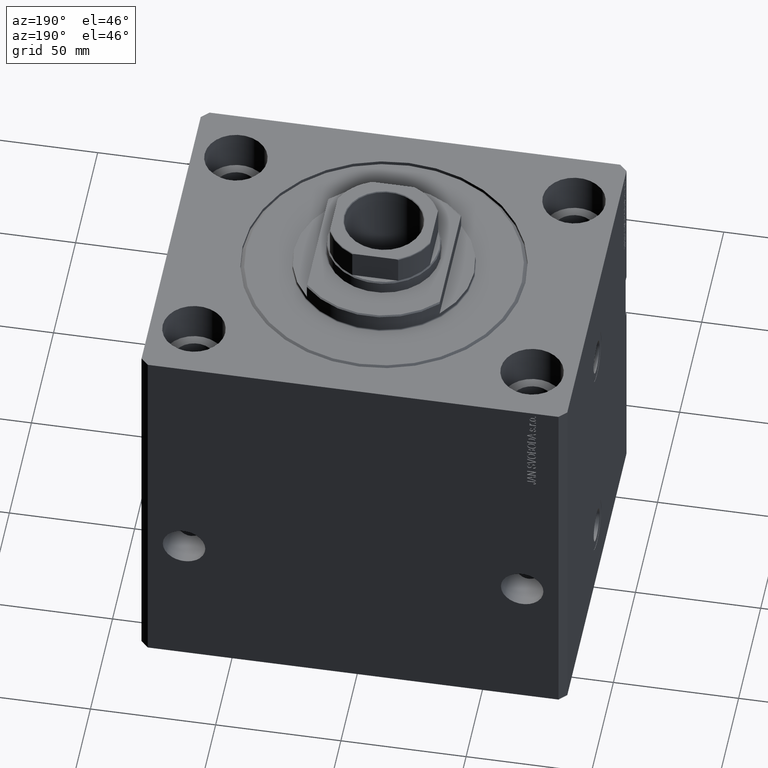
[diagram: clean part render]
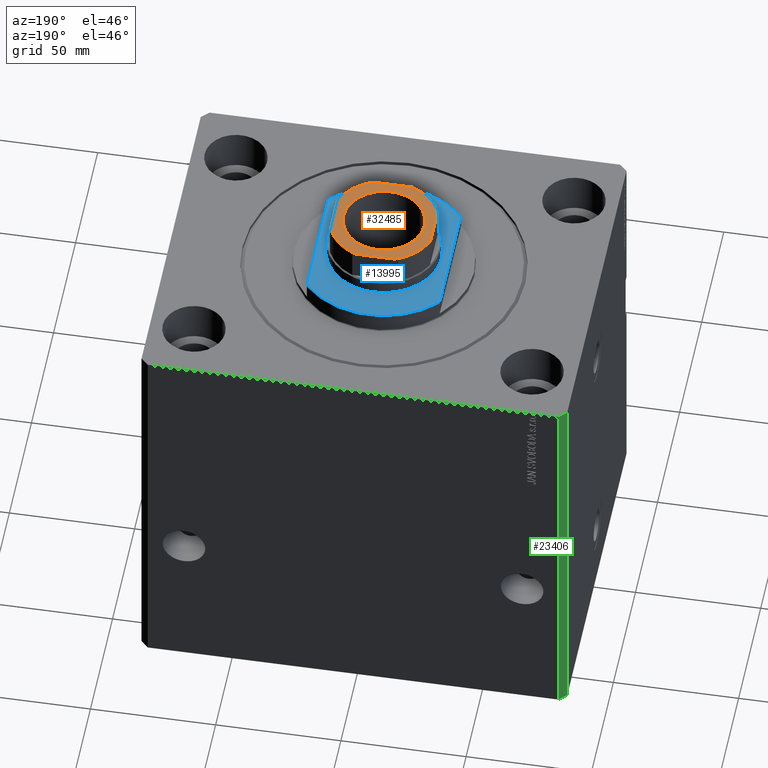
[diagram: same view with three faces highlighted in distinct colors, each labeled with its STEP entity id]
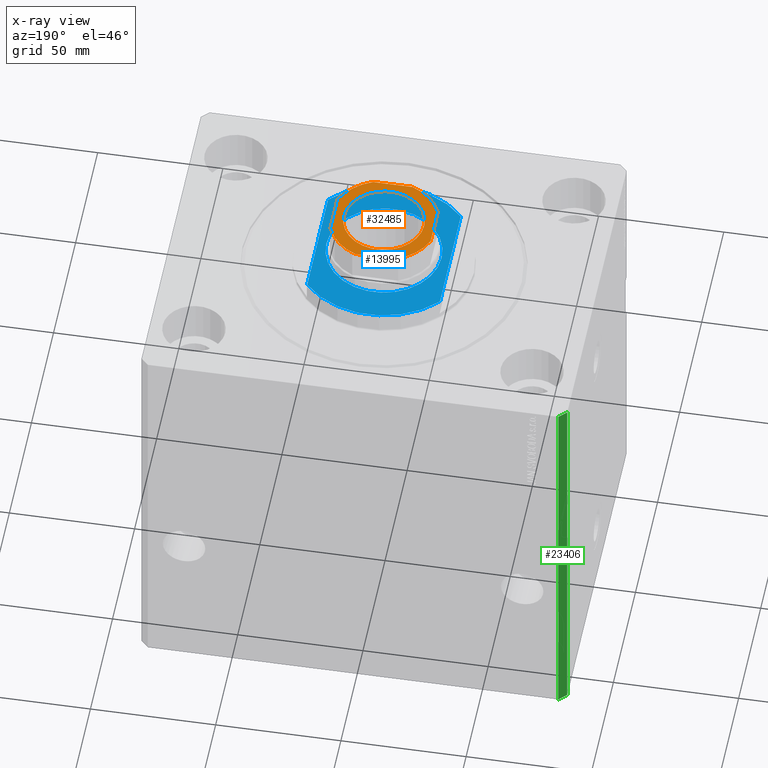
[diagram: x-ray of the same camera — body ghosted, the three highlighted faces saturated]
A machine part, auxiliary view with three faces highlighted in distinct colors.
The next image is the same camera in x-ray (body ghosted, the three faces saturated) — at least one of them is partly hidden behind the body in this view.
Their STEP definitions:

[orange] entity #32485 — the highlighted planar face has unit normal (0, 0, 1).
#276 = DIRECTION ( 'NONE',  ( 1.000000000000000000, 0.000000000000000000, 0.000000000000000000 ) ) ;
#1474 = VECTOR ( 'NONE', #3924, 1000.000000000000000 ) ;
#1686 = DIRECTION ( 'NONE',  ( -1.734723475976807094E-16, 1.000000000000000000, -0.000000000000000000 ) ) ;
#1882 = DIRECTION ( 'NONE',  ( -0.000000000000000000, 0.000000000000000000, 1.000000000000000000 ) ) ;
#1914 = DIRECTION ( 'NONE',  ( 1.000000000000000000, 0.000000000000000000, 0.000000000000000000 ) ) ;
#2590 = CARTESIAN_POINT ( 'NONE',  ( 0.000000000000000000, 0.000000000000000000, 156.1000000000000227 ) ) ;
#3801 = CARTESIAN_POINT ( 'NONE',  ( 0.000000000000000000, 0.000000000000000000, 156.1000000000000227 ) ) ;
#3924 = DIRECTION ( 'NONE',  ( -1.000000000000000000, -0.000000000000000000, -0.000000000000000000 ) ) ;
#4854 = DIRECTION ( 'NONE',  ( 1.000000000000000000, 0.000000000000000000, 0.000000000000000000 ) ) ;
#5257 = VERTEX_POINT ( 'NONE', #41442 ) ;
#5635 = EDGE_CURVE ( 'NONE', #8055, #29977, #12332, .T. ) ;
#5647 = FACE_BOUND ( 'NONE', #39605, .T. ) ;
#6021 = ORIENTED_EDGE ( 'NONE', *, *, #20342, .T. ) ;
#7233 = CARTESIAN_POINT ( 'NONE',  ( -20.00000000000000355, -7.889866919029736358, 156.1000000000000227 ) ) ;
#7581 = EDGE_LOOP ( 'NONE', ( #32212, #23807, #32930, #23242, #18116, #6021, #22397, #38482 ) ) ;
#8055 = VERTEX_POINT ( 'NONE', #7233 ) ;
#8152 = AXIS2_PLACEMENT_3D ( 'NONE', #2590, #45599, #1914 ) ;
#8372 = DIRECTION ( 'NONE',  ( 0.000000000000000000, -0.000000000000000000, -1.000000000000000000 ) ) ;
#8897 = DIRECTION ( 'NONE',  ( -0.000000000000000000, 0.000000000000000000, 1.000000000000000000 ) ) ;
#10628 = CARTESIAN_POINT ( 'NONE',  ( 0.000000000000000000, 0.000000000000000000, 156.1000000000000227 ) ) ;
#10708 = CARTESIAN_POINT ( 'NONE',  ( -20.00000000000000355, 20.00000000000000000, 156.1000000000000227 ) ) ;
#11344 = DIRECTION ( 'NONE',  ( 1.000000000000000000, 0.000000000000000000, 0.000000000000000000 ) ) ;
#11926 = AXIS2_PLACEMENT_3D ( 'NONE', #40406, #8372, #4854 ) ;
#12332 = CIRCLE ( 'NONE', #16836, 21.50000000000000000 ) ;
#13353 = FACE_OUTER_BOUND ( 'NONE', #7581, .T. ) ;
#13898 = VERTEX_POINT ( 'NONE', #45610 ) ;
#15574 = AXIS2_PLACEMENT_3D ( 'NONE', #33330, #22330, #33102 ) ;
#16616 = CARTESIAN_POINT ( 'NONE',  ( 7.889866919029745240, -20.00000000000000000, 156.1000000000000227 ) ) ;
#16836 = AXIS2_PLACEMENT_3D ( 'NONE', #33919, #1882, #30416 ) ;
#16858 = LINE ( 'NONE', #37452, #36725 ) ;
#18116 = ORIENTED_EDGE ( 'NONE', *, *, #42975, .T. ) ;
#20026 = DIRECTION ( 'NONE',  ( 8.673617379884035472E-17, -1.000000000000000000, 0.000000000000000000 ) ) ;
#20342 = EDGE_CURVE ( 'NONE', #31720, #5257, #43224, .T. ) ;
#21415 = EDGE_CURVE ( 'NONE', #43835, #26244, #21647, .T. ) ;
#21503 = VERTEX_POINT ( 'NONE', #16616 ) ;
#21647 = CIRCLE ( 'NONE', #41020, 21.50000000000000000 ) ;
#22330 = DIRECTION ( 'NONE',  ( 0.000000000000000000, -0.000000000000000000, -1.000000000000000000 ) ) ;
#22397 = ORIENTED_EDGE ( 'NONE', *, *, #37063, .T. ) ;
#23028 = LINE ( 'NONE', #25605, #43425 ) ;
#23182 = DIRECTION ( 'NONE',  ( 1.000000000000000000, 0.000000000000000000, 0.000000000000000000 ) ) ;
#23242 = ORIENTED_EDGE ( 'NONE', *, *, #38147, .T. ) ;
#23651 = PLANE ( 'NONE',  #8152 ) ;
#23807 = ORIENTED_EDGE ( 'NONE', *, *, #5635, .T. ) ;
#24892 = DIRECTION ( 'NONE',  ( 1.000000000000000000, 0.000000000000000000, 0.000000000000000000 ) ) ;
#25605 = CARTESIAN_POINT ( 'NONE',  ( -20.00000000000000000, -20.00000000000000000, 156.1000000000000227 ) ) ;
#26244 = VERTEX_POINT ( 'NONE', #26988 ) ;
#26820 = ORIENTED_EDGE ( 'NONE', *, *, #33757, .T. ) ;
#26880 = CIRCLE ( 'NONE', #34345, 21.50000000000000000 ) ;
#26988 = CARTESIAN_POINT ( 'NONE',  ( -20.00000000000000355, 7.889866919029741688, 156.1000000000000227 ) ) ;
#27513 = VECTOR ( 'NONE', #20026, 1000.000000000000000 ) ;
#27744 = CARTESIAN_POINT ( 'NONE',  ( -20.00000000000000355, 20.00000000000000000, 156.1000000000000227 ) ) ;
#29057 = AXIS2_PLACEMENT_3D ( 'NONE', #3801, #31623, #276 ) ;
#29088 = DIRECTION ( 'NONE',  ( -0.000000000000000000, 0.000000000000000000, 1.000000000000000000 ) ) ;
#29223 = VERTEX_POINT ( 'NONE', #32149 ) ;
#29939 = CARTESIAN_POINT ( 'NONE',  ( -7.889866919029745240, -20.00000000000000000, 156.1000000000000227 ) ) ;
#29977 = VERTEX_POINT ( 'NONE', #29939 ) ;
#30310 = EDGE_CURVE ( 'NONE', #26244, #8055, #31243, .T. ) ;
#30416 = DIRECTION ( 'NONE',  ( 1.000000000000000000, 0.000000000000000000, 0.000000000000000000 ) ) ;
#30419 = CARTESIAN_POINT ( 'NONE',  ( 0.000000000000000000, 0.000000000000000000, 156.1000000000000227 ) ) ;
#30561 = EDGE_CURVE ( 'NONE', #30612, #13898, #37223, .T. ) ;
#30612 = VERTEX_POINT ( 'NONE', #39059 ) ;
#31243 = LINE ( 'NONE', #27744, #27513 ) ;
#31623 = DIRECTION ( 'NONE',  ( -0.000000000000000000, 0.000000000000000000, 1.000000000000000000 ) ) ;
#31720 = VERTEX_POINT ( 'NONE', #44466 ) ;
#32149 = CARTESIAN_POINT ( 'NONE',  ( 20.00000000000000000, -7.889866919029739911, 156.1000000000000227 ) ) ;
#32212 = ORIENTED_EDGE ( 'NONE', *, *, #30310, .T. ) ;
#32485 = ADVANCED_FACE ( 'NONE', ( #5647, #13353 ), #23651, .T. ) ;
#32930 = ORIENTED_EDGE ( 'NONE', *, *, #42499, .T. ) ;
#33102 = DIRECTION ( 'NONE',  ( 1.000000000000000000, 0.000000000000000000, 0.000000000000000000 ) ) ;
#33330 = CARTESIAN_POINT ( 'NONE',  ( 0.000000000000000000, 0.000000000000000000, 156.1000000000000227 ) ) ;
#33757 = EDGE_CURVE ( 'NONE', #13898, #30612, #38050, .T. ) ;
#33919 = CARTESIAN_POINT ( 'NONE',  ( 0.000000000000000000, 0.000000000000000000, 156.1000000000000227 ) ) ;
#34345 = AXIS2_PLACEMENT_3D ( 'NONE', #10628, #29088, #24892 ) ;
#36725 = VECTOR ( 'NONE', #1686, 1000.000000000000000 ) ;
#36868 = ORIENTED_EDGE ( 'NONE', *, *, #30561, .T. ) ;
#37063 = EDGE_CURVE ( 'NONE', #5257, #43835, #39222, .T. ) ;
#37223 = CIRCLE ( 'NONE', #15574, 16.05000000000006466 ) ;
#37452 = CARTESIAN_POINT ( 'NONE',  ( 19.99999999999999645, 20.00000000000000000, 156.1000000000000227 ) ) ;
#38050 = CIRCLE ( 'NONE', #11926, 16.05000000000006466 ) ;
#38147 = EDGE_CURVE ( 'NONE', #21503, #29223, #26880, .T. ) ;
#38482 = ORIENTED_EDGE ( 'NONE', *, *, #21415, .T. ) ;
#39059 = CARTESIAN_POINT ( 'NONE',  ( -16.05000000000006466, 1.965558112631509699E-15, 156.1000000000000227 ) ) ;
#39222 = LINE ( 'NONE', #10708, #1474 ) ;
#39605 = EDGE_LOOP ( 'NONE', ( #26820, #36868 ) ) ;
#40267 = CARTESIAN_POINT ( 'NONE',  ( -7.889866919029745240, 20.00000000000000000, 156.1000000000000227 ) ) ;
#40406 = CARTESIAN_POINT ( 'NONE',  ( 0.000000000000000000, 0.000000000000000000, 156.1000000000000227 ) ) ;
#41020 = AXIS2_PLACEMENT_3D ( 'NONE', #30419, #8897, #23182 ) ;
#41442 = CARTESIAN_POINT ( 'NONE',  ( 7.889866919029743464, 20.00000000000000000, 156.1000000000000227 ) ) ;
#42499 = EDGE_CURVE ( 'NONE', #29977, #21503, #23028, .T. ) ;
#42975 = EDGE_CURVE ( 'NONE', #29223, #31720, #16858, .T. ) ;
#43224 = CIRCLE ( 'NONE', #29057, 21.50000000000000000 ) ;
#43425 = VECTOR ( 'NONE', #11344, 1000.000000000000000 ) ;
#43835 = VERTEX_POINT ( 'NONE', #40267 ) ;
#44466 = CARTESIAN_POINT ( 'NONE',  ( 20.00000000000000000, 7.889866919029748793, 156.1000000000000227 ) ) ;
#45599 = DIRECTION ( 'NONE',  ( -0.000000000000000000, 0.000000000000000000, 1.000000000000000000 ) ) ;
#45610 = CARTESIAN_POINT ( 'NONE',  ( 16.05000000000006466, 0.000000000000000000, 156.1000000000000227 ) ) ;

[blue] entity #13995 — the highlighted planar face has unit normal (0, 0, 1).
#1081 = DIRECTION ( 'NONE',  ( -1.000000000000000000, 0.000000000000000000, 0.000000000000000000 ) ) ;
#1165 = EDGE_CURVE ( 'NONE', #31340, #8437, #10834, .T. ) ;
#2136 = AXIS2_PLACEMENT_3D ( 'NONE', #23882, #2369, #44925 ) ;
#2369 = DIRECTION ( 'NONE',  ( -0.000000000000000000, -0.000000000000000000, 1.000000000000000000 ) ) ;
#2868 = DIRECTION ( 'NONE',  ( 0.000000000000000000, -1.000000000000000000, -0.000000000000000000 ) ) ;
#3181 = CARTESIAN_POINT ( 'NONE',  ( 26.50000000000000000, -23.62202362203536765, -8.000000000000000000 ) ) ;
#3390 = CIRCLE ( 'NONE', #29538, 35.49999999999996447 ) ;
#4277 = VECTOR ( 'NONE', #4372, 1000.000000000000000 ) ;
#4372 = DIRECTION ( 'NONE',  ( -0.000000000000000000, -1.000000000000000000, -0.000000000000000000 ) ) ;
#4628 = FACE_OUTER_BOUND ( 'NONE', #27017, .T. ) ;
#5990 = EDGE_CURVE ( 'NONE', #39734, #18166, #3390, .T. ) ;
#7240 = EDGE_CURVE ( 'NONE', #18266, #17638, #42222, .T. ) ;
#7823 = AXIS2_PLACEMENT_3D ( 'NONE', #44436, #19438, #34150 ) ;
#7858 = DIRECTION ( 'NONE',  ( 0.000000000000000000, 0.000000000000000000, -1.000000000000000000 ) ) ;
#8210 = ORIENTED_EDGE ( 'NONE', *, *, #1165, .T. ) ;
#8437 = VERTEX_POINT ( 'NONE', #34085 ) ;
#8594 = PLANE ( 'NONE',  #33504 ) ;
#9760 = EDGE_LOOP ( 'NONE', ( #42393, #22119 ) ) ;
#10834 = CIRCLE ( 'NONE', #7823, 35.49999999999996447 ) ;
#11211 = EDGE_CURVE ( 'NONE', #39734, #8437, #33385, .T. ) ;
#12569 = ORIENTED_EDGE ( 'NONE', *, *, #43598, .T. ) ;
#13995 = ADVANCED_FACE ( 'NONE', ( #36671, #4628 ), #8594, .T. ) ;
#14068 = CARTESIAN_POINT ( 'NONE',  ( 0.000000000000000000, 0.000000000000000000, -8.000000000000000000 ) ) ;
#15538 = EDGE_CURVE ( 'NONE', #17638, #18266, #16341, .T. ) ;
#16341 = CIRCLE ( 'NONE', #2136, 23.00000000000001776 ) ;
#16583 = CARTESIAN_POINT ( 'NONE',  ( -23.00000000000001776, 0.000000000000000000, -8.000000000000000000 ) ) ;
#16864 = AXIS2_PLACEMENT_3D ( 'NONE', #30809, #23107, #37577 ) ;
#17638 = VERTEX_POINT ( 'NONE', #20076 ) ;
#18166 = VERTEX_POINT ( 'NONE', #21063 ) ;
#18266 = VERTEX_POINT ( 'NONE', #16583 ) ;
#18892 = DIRECTION ( 'NONE',  ( 0.000000000000000000, 0.000000000000000000, -1.000000000000000000 ) ) ;
#19438 = DIRECTION ( 'NONE',  ( 0.000000000000000000, 0.000000000000000000, -1.000000000000000000 ) ) ;
#20076 = CARTESIAN_POINT ( 'NONE',  ( 23.00000000000001776, 2.816687638038914718E-15, -8.000000000000000000 ) ) ;
#21063 = CARTESIAN_POINT ( 'NONE',  ( 26.50000000000000000, 23.62202362203536765, -8.000000000000000000 ) ) ;
#22119 = ORIENTED_EDGE ( 'NONE', *, *, #15538, .T. ) ;
#22670 = CARTESIAN_POINT ( 'NONE',  ( -26.50000000000000000, 23.62202362203536765, -8.000000000000000000 ) ) ;
#23107 = DIRECTION ( 'NONE',  ( -0.000000000000000000, -0.000000000000000000, 1.000000000000000000 ) ) ;
#23882 = CARTESIAN_POINT ( 'NONE',  ( 0.000000000000000000, 0.000000000000000000, -8.000000000000000000 ) ) ;
#24388 = CARTESIAN_POINT ( 'NONE',  ( 26.50000000000000000, -36.36963018783666257, -8.000000000000000000 ) ) ;
#24732 = ORIENTED_EDGE ( 'NONE', *, *, #5990, .T. ) ;
#24823 = DIRECTION ( 'NONE',  ( -1.000000000000000000, 0.000000000000000000, -0.000000000000000000 ) ) ;
#27017 = EDGE_LOOP ( 'NONE', ( #24732, #12569, #8210, #29509 ) ) ;
#29186 = CARTESIAN_POINT ( 'NONE',  ( -26.50000000000000000, -36.36963018783666257, -8.000000000000000000 ) ) ;
#29509 = ORIENTED_EDGE ( 'NONE', *, *, #11211, .F. ) ;
#29538 = AXIS2_PLACEMENT_3D ( 'NONE', #36631, #7858, #1081 ) ;
#30809 = CARTESIAN_POINT ( 'NONE',  ( 0.000000000000000000, 0.000000000000000000, -8.000000000000000000 ) ) ;
#31340 = VERTEX_POINT ( 'NONE', #3181 ) ;
#31649 = LINE ( 'NONE', #24388, #38989 ) ;
#33385 = LINE ( 'NONE', #29186, #4277 ) ;
#33504 = AXIS2_PLACEMENT_3D ( 'NONE', #14068, #18892, #24823 ) ;
#34085 = CARTESIAN_POINT ( 'NONE',  ( -26.50000000000000711, -23.62202362203537476, -8.000000000000000000 ) ) ;
#34150 = DIRECTION ( 'NONE',  ( -1.000000000000000000, 0.000000000000000000, 0.000000000000000000 ) ) ;
#36631 = CARTESIAN_POINT ( 'NONE',  ( 0.000000000000000000, 0.000000000000000000, -8.000000000000000000 ) ) ;
#36671 = FACE_BOUND ( 'NONE', #9760, .T. ) ;
#37577 = DIRECTION ( 'NONE',  ( -1.000000000000000000, 0.000000000000000000, 0.000000000000000000 ) ) ;
#38989 = VECTOR ( 'NONE', #2868, 1000.000000000000000 ) ;
#39734 = VERTEX_POINT ( 'NONE', #22670 ) ;
#42222 = CIRCLE ( 'NONE', #16864, 23.00000000000001776 ) ;
#42393 = ORIENTED_EDGE ( 'NONE', *, *, #7240, .T. ) ;
#43598 = EDGE_CURVE ( 'NONE', #18166, #31340, #31649, .T. ) ;
#44436 = CARTESIAN_POINT ( 'NONE',  ( 0.000000000000000000, 0.000000000000000000, -8.000000000000000000 ) ) ;
#44925 = DIRECTION ( 'NONE',  ( -1.000000000000000000, 0.000000000000000000, 0.000000000000000000 ) ) ;

[green] entity #23406 — the highlighted planar face has unit normal (-0.7071, 0.7071, 0).
#50 = ORIENTED_EDGE ( 'NONE', *, *, #779, .F. ) ;
#572 = EDGE_CURVE ( 'NONE', #35642, #13664, #32274, .T. ) ;
#779 = EDGE_CURVE ( 'NONE', #13664, #40463, #29919, .T. ) ;
#1034 = ORIENTED_EDGE ( 'NONE', *, *, #19598, .T. ) ;
#4226 = LINE ( 'NONE', #11947, #37284 ) ;
#7435 = DIRECTION ( 'NONE',  ( -0.7071067811865475727, 0.7071067811865475727, 0.000000000000000000 ) ) ;
#8199 = DIRECTION ( 'NONE',  ( -0.7071067811865474617, -0.7071067811865474617, 0.000000000000000000 ) ) ;
#8742 = CARTESIAN_POINT ( 'NONE',  ( -85.00000000000000000, 67.00000000000000000, -160.0000000000000000 ) ) ;
#9201 = DIRECTION ( 'NONE',  ( 0.000000000000000000, 0.000000000000000000, 1.000000000000000000 ) ) ;
#10943 = FACE_OUTER_BOUND ( 'NONE', #29846, .T. ) ;
#11440 = CARTESIAN_POINT ( 'NONE',  ( -82.00000000000000000, 70.00000000000000000, -160.0000000000000000 ) ) ;
#11704 = ORIENTED_EDGE ( 'NONE', *, *, #572, .F. ) ;
#11947 = CARTESIAN_POINT ( 'NONE',  ( -82.00000000000000000, 70.00000000000000000, -160.0000000000000000 ) ) ;
#13664 = VERTEX_POINT ( 'NONE', #37518 ) ;
#16434 = ORIENTED_EDGE ( 'NONE', *, *, #29272, .T. ) ;
#17544 = VECTOR ( 'NONE', #26403, 1000.000000000000114 ) ;
#19598 = EDGE_CURVE ( 'NONE', #35642, #41371, #4226, .T. ) ;
#19611 = CARTESIAN_POINT ( 'NONE',  ( -82.00000000000000000, 70.00000000000000000, 0.000000000000000000 ) ) ;
#21709 = DIRECTION ( 'NONE',  ( -0.7071067811865474617, -0.7071067811865474617, 0.000000000000000000 ) ) ;
#23406 = ADVANCED_FACE ( 'NONE', ( #10943 ), #25208, .T. ) ;
#25208 = PLANE ( 'NONE',  #41085 ) ;
#25472 = DIRECTION ( 'NONE',  ( 0.000000000000000000, 0.000000000000000000, 1.000000000000000000 ) ) ;
#26129 = CARTESIAN_POINT ( 'NONE',  ( -85.00000000000000000, 67.00000000000000000, -160.0000000000000000 ) ) ;
#26403 = DIRECTION ( 'NONE',  ( -0.7071067811865474617, -0.7071067811865474617, 0.000000000000000000 ) ) ;
#29272 = EDGE_CURVE ( 'NONE', #41371, #40463, #37724, .T. ) ;
#29846 = EDGE_LOOP ( 'NONE', ( #50, #11704, #1034, #16434 ) ) ;
#29919 = LINE ( 'NONE', #19611, #17544 ) ;
#32274 = LINE ( 'NONE', #11440, #45885 ) ;
#35642 = VERTEX_POINT ( 'NONE', #37252 ) ;
#37252 = CARTESIAN_POINT ( 'NONE',  ( -82.00000000000000000, 70.00000000000000000, -160.0000000000000000 ) ) ;
#37284 = VECTOR ( 'NONE', #8199, 1000.000000000000114 ) ;
#37518 = CARTESIAN_POINT ( 'NONE',  ( -82.00000000000000000, 70.00000000000000000, 0.000000000000000000 ) ) ;
#37724 = LINE ( 'NONE', #8742, #40153 ) ;
#39463 = CARTESIAN_POINT ( 'NONE',  ( -82.00000000000000000, 70.00000000000000000, -160.0000000000000000 ) ) ;
#40153 = VECTOR ( 'NONE', #9201, 1000.000000000000000 ) ;
#40463 = VERTEX_POINT ( 'NONE', #45463 ) ;
#41085 = AXIS2_PLACEMENT_3D ( 'NONE', #39463, #7435, #21709 ) ;
#41371 = VERTEX_POINT ( 'NONE', #26129 ) ;
#45463 = CARTESIAN_POINT ( 'NONE',  ( -85.00000000000000000, 67.00000000000000000, 0.000000000000000000 ) ) ;
#45885 = VECTOR ( 'NONE', #25472, 1000.000000000000000 ) ;